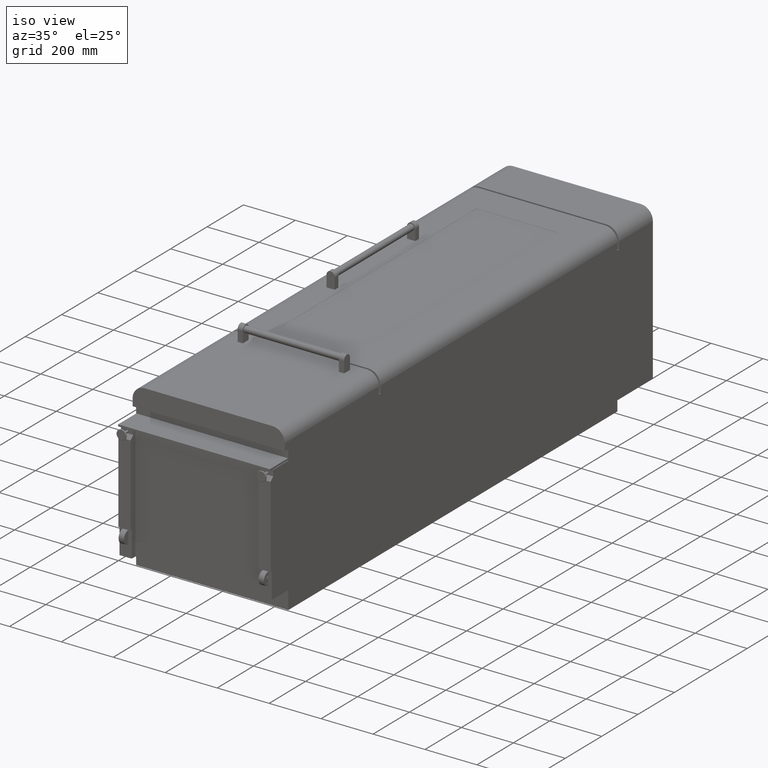
[diagram: clean part render]
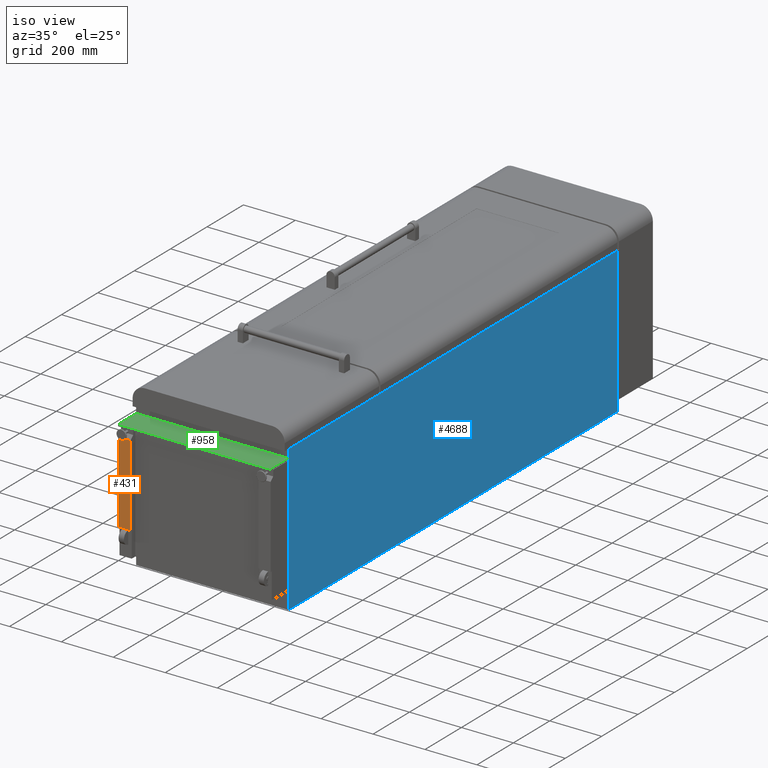
[diagram: same view with three faces highlighted in distinct colors, each labeled with its STEP entity id]
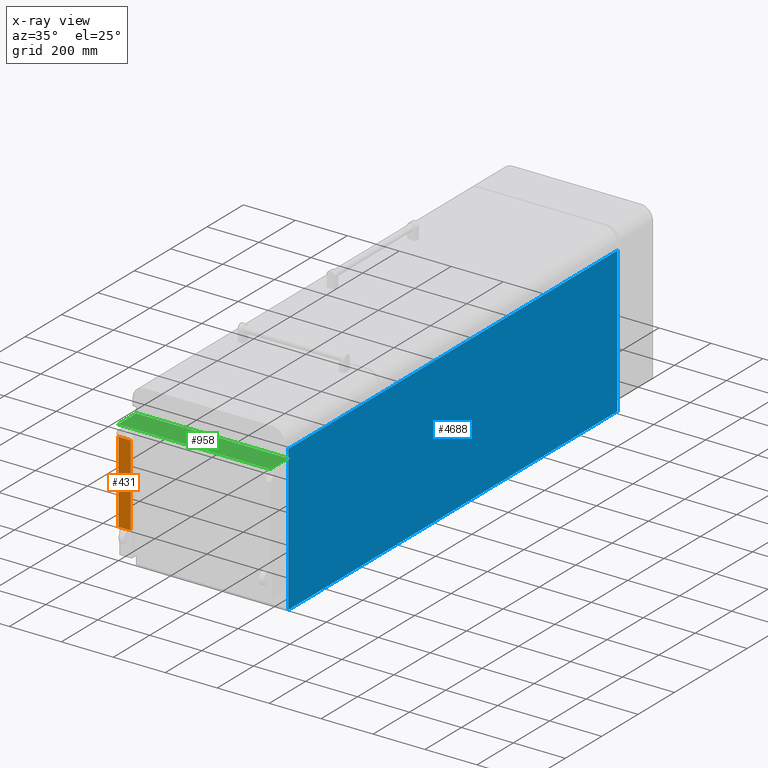
[diagram: x-ray of the same camera — body ghosted, the three highlighted faces saturated]
A machine part, iso view with three faces highlighted in distinct colors.
The next image is the same camera in x-ray (body ghosted, the three faces saturated) — at least one of them is partly hidden behind the body in this view.
Their STEP definitions:

[orange] entity #431 — the highlighted planar face has unit normal (-0, 1, 0).
#86 = VECTOR ( 'NONE', #4787, 1000.000000000000000 ) ;
#196 = LINE ( 'NONE', #1693, #1466 ) ;
#366 = CARTESIAN_POINT ( 'NONE',  ( -245.9999999999999400, -953.3499999999999100, 279.9999999999999400 ) ) ;
#431 = ADVANCED_FACE ( 'NONE', ( #1233 ), #1531, .F. ) ;
#434 = EDGE_CURVE ( 'NONE', #5209, #1123, #5119, .T. ) ;
#611 = AXIS2_PLACEMENT_3D ( 'NONE', #2372, #1569, #1791 ) ;
#698 = EDGE_CURVE ( 'NONE', #4497, #5209, #196, .T. ) ;
#762 = CARTESIAN_POINT ( 'NONE',  ( -293.0000000000000000, -953.3499999999999100, 279.9999999999999400 ) ) ;
#866 = ORIENTED_EDGE ( 'NONE', *, *, #698, .T. ) ;
#1123 = VERTEX_POINT ( 'NONE', #1126 ) ;
#1126 = CARTESIAN_POINT ( 'NONE',  ( -245.9999999999999400, -953.3499999999999100, 203.1000000000014700 ) ) ;
#1165 = DIRECTION ( 'NONE',  ( 0.0000000000000000000, 0.0000000000000000000, -1.000000000000000000 ) ) ;
#1233 = FACE_OUTER_BOUND ( 'NONE', #4541, .T. ) ;
#1362 = CARTESIAN_POINT ( 'NONE',  ( -293.0000000000000000, -953.3499999999999100, 203.1000000000014700 ) ) ;
#1466 = VECTOR ( 'NONE', #2095, 1000.000000000000000 ) ;
#1531 = PLANE ( 'NONE',  #611 ) ;
#1569 = DIRECTION ( 'NONE',  ( -0.0000000000000000000, 1.000000000000000000, 0.0000000000000000000 ) ) ;
#1693 = CARTESIAN_POINT ( 'NONE',  ( -293.0000000000000000, -953.3499999999998000, -110.3999999999987300 ) ) ;
#1778 = EDGE_CURVE ( 'NONE', #2250, #1123, #4190, .T. ) ;
#1783 = DIRECTION ( 'NONE',  ( 1.000000000000000000, -0.0000000000000000000, -0.0000000000000000000 ) ) ;
#1791 = DIRECTION ( 'NONE',  ( 0.0000000000000000000, -0.0000000000000000000, 1.000000000000000000 ) ) ;
#2095 = DIRECTION ( 'NONE',  ( 1.000000000000000000, -0.0000000000000000000, -0.0000000000000000000 ) ) ;
#2250 = VERTEX_POINT ( 'NONE', #3741 ) ;
#2258 = CARTESIAN_POINT ( 'NONE',  ( -246.0000000000000000, -953.3499999999998000, -110.3999999999987300 ) ) ;
#2355 = VECTOR ( 'NONE', #1165, 1000.000000000000000 ) ;
#2372 = CARTESIAN_POINT ( 'NONE',  ( 293.0000000000000000, -953.3499999999999100, 279.9999999999999400 ) ) ;
#2821 = ORIENTED_EDGE ( 'NONE', *, *, #434, .T. ) ;
#3101 = EDGE_CURVE ( 'NONE', #2250, #4497, #3777, .T. ) ;
#3111 = VECTOR ( 'NONE', #1783, 1000.000000000000000 ) ;
#3445 = CARTESIAN_POINT ( 'NONE',  ( -293.0000000000000000, -953.3499999999998000, -110.3999999999987300 ) ) ;
#3741 = CARTESIAN_POINT ( 'NONE',  ( -293.0000000000000000, -953.3499999999999100, 203.1000000000014700 ) ) ;
#3777 = LINE ( 'NONE', #762, #2355 ) ;
#3831 = ORIENTED_EDGE ( 'NONE', *, *, #3101, .T. ) ;
#4190 = LINE ( 'NONE', #1362, #3111 ) ;
#4311 = ORIENTED_EDGE ( 'NONE', *, *, #1778, .F. ) ;
#4497 = VERTEX_POINT ( 'NONE', #3445 ) ;
#4541 = EDGE_LOOP ( 'NONE', ( #866, #2821, #4311, #3831 ) ) ;
#4787 = DIRECTION ( 'NONE',  ( 0.0000000000000000000, 0.0000000000000000000, 1.000000000000000000 ) ) ;
#5119 = LINE ( 'NONE', #366, #86 ) ;
#5209 = VERTEX_POINT ( 'NONE', #2258 ) ;

[blue] entity #4688 — the highlighted planar face has unit normal (1, 0, 0).
#269 = EDGE_CURVE ( 'NONE', #3588, #3946, #1033, .T. ) ;
#455 = VECTOR ( 'NONE', #563, 1000.000000000000000 ) ;
#485 = CARTESIAN_POINT ( 'NONE',  ( 293.0000000000000000, 953.3500000000001400, 280.0000000000001700 ) ) ;
#543 = DIRECTION ( 'NONE',  ( -0.0000000000000000000, 1.000000000000000000, 1.164549246997594400E-016 ) ) ;
#563 = DIRECTION ( 'NONE',  ( 0.0000000000000000000, -1.000000000000000000, -1.164549246997594400E-016 ) ) ;
#789 = EDGE_LOOP ( 'NONE', ( #3000, #1433, #2495, #2862 ) ) ;
#813 = VECTOR ( 'NONE', #543, 1000.000000000000000 ) ;
#842 = VECTOR ( 'NONE', #4768, 1000.000000000000000 ) ;
#967 = LINE ( 'NONE', #4821, #842 ) ;
#1033 = LINE ( 'NONE', #1405, #455 ) ;
#1405 = CARTESIAN_POINT ( 'NONE',  ( 293.0000000000000000, 953.3500000000001400, 280.0000000000001700 ) ) ;
#1410 = FACE_OUTER_BOUND ( 'NONE', #789, .T. ) ;
#1433 = ORIENTED_EDGE ( 'NONE', *, *, #1516, .T. ) ;
#1458 = CARTESIAN_POINT ( 'NONE',  ( 293.0000000000000000, 0.0000000000000000000, 0.0000000000000000000 ) ) ;
#1498 = AXIS2_PLACEMENT_3D ( 'NONE', #1458, #2292, #4302 ) ;
#1516 = EDGE_CURVE ( 'NONE', #2290, #4270, #4835, .T. ) ;
#1921 = CARTESIAN_POINT ( 'NONE',  ( 293.0000000000000000, 953.3500000000001400, -279.9999999999998900 ) ) ;
#2290 = VERTEX_POINT ( 'NONE', #2596 ) ;
#2292 = DIRECTION ( 'NONE',  ( 1.000000000000000000, 0.0000000000000000000, 0.0000000000000000000 ) ) ;
#2495 = ORIENTED_EDGE ( 'NONE', *, *, #3675, .T. ) ;
#2596 = CARTESIAN_POINT ( 'NONE',  ( 293.0000000000000000, -856.3500000000000200, -280.0000000000000600 ) ) ;
#2676 = PLANE ( 'NONE',  #1498 ) ;
#2862 = ORIENTED_EDGE ( 'NONE', *, *, #269, .T. ) ;
#3000 = ORIENTED_EDGE ( 'NONE', *, *, #4305, .F. ) ;
#3021 = VECTOR ( 'NONE', #3236, 1000.000000000000000 ) ;
#3236 = DIRECTION ( 'NONE',  ( -0.0000000000000000000, -0.0000000000000000000, 1.000000000000000000 ) ) ;
#3588 = VERTEX_POINT ( 'NONE', #4288 ) ;
#3675 = EDGE_CURVE ( 'NONE', #4270, #3588, #4352, .T. ) ;
#3687 = CARTESIAN_POINT ( 'NONE',  ( 293.0000000000000000, -856.3500000000000200, 279.9999999999999400 ) ) ;
#3946 = VERTEX_POINT ( 'NONE', #3687 ) ;
#4270 = VERTEX_POINT ( 'NONE', #1921 ) ;
#4288 = CARTESIAN_POINT ( 'NONE',  ( 293.0000000000000000, 953.3500000000001400, 280.0000000000001700 ) ) ;
#4302 = DIRECTION ( 'NONE',  ( 0.0000000000000000000, 0.0000000000000000000, -1.000000000000000000 ) ) ;
#4305 = EDGE_CURVE ( 'NONE', #2290, #3946, #967, .T. ) ;
#4352 = LINE ( 'NONE', #485, #3021 ) ;
#4688 = ADVANCED_FACE ( 'NONE', ( #1410 ), #2676, .T. ) ;
#4768 = DIRECTION ( 'NONE',  ( -0.0000000000000000000, -0.0000000000000000000, 1.000000000000000000 ) ) ;
#4821 = CARTESIAN_POINT ( 'NONE',  ( 293.0000000000000000, -856.3500000000000200, 279.9999999999999400 ) ) ;
#4835 = LINE ( 'NONE', #4994, #813 ) ;
#4994 = CARTESIAN_POINT ( 'NONE',  ( 293.0000000000000000, 953.3500000000001400, -279.9999999999998900 ) ) ;

[green] entity #958 — the highlighted planar face has unit normal (0, 0, 1).
#35 = EDGE_CURVE ( 'NONE', #4626, #1415, #2968, .T. ) ;
#118 = FACE_OUTER_BOUND ( 'NONE', #3617, .T. ) ;
#166 = LINE ( 'NONE', #4072, #4707 ) ;
#658 = CARTESIAN_POINT ( 'NONE',  ( 292.0000000000000000, -956.3500000000002500, 248.0000000000002000 ) ) ;
#705 = EDGE_CURVE ( 'NONE', #1264, #4626, #3434, .T. ) ;
#769 = PLANE ( 'NONE',  #1135 ) ;
#887 = EDGE_CURVE ( 'NONE', #1415, #1991, #3301, .T. ) ;
#958 = ADVANCED_FACE ( 'NONE', ( #118 ), #769, .T. ) ;
#1135 = AXIS2_PLACEMENT_3D ( 'NONE', #1221, #4027, #1581 ) ;
#1221 = CARTESIAN_POINT ( 'NONE',  ( 0.0000000000000000000, 0.0000000000000000000, 248.0000000000002000 ) ) ;
#1264 = VERTEX_POINT ( 'NONE', #1431 ) ;
#1354 = DIRECTION ( 'NONE',  ( 0.0000000000000000000, -1.000000000000000000, 0.0000000000000000000 ) ) ;
#1415 = VERTEX_POINT ( 'NONE', #658 ) ;
#1431 = CARTESIAN_POINT ( 'NONE',  ( -291.9999999999998900, -856.3500000000002500, 248.0000000000002000 ) ) ;
#1518 = ORIENTED_EDGE ( 'NONE', *, *, #35, .T. ) ;
#1581 = DIRECTION ( 'NONE',  ( 1.000000000000000000, 0.0000000000000000000, -0.0000000000000000000 ) ) ;
#1688 = CARTESIAN_POINT ( 'NONE',  ( -291.9999999999998900, -956.3500000000001400, 248.0000000000002000 ) ) ;
#1854 = ORIENTED_EDGE ( 'NONE', *, *, #887, .T. ) ;
#1967 = EDGE_CURVE ( 'NONE', #1991, #1264, #166, .T. ) ;
#1991 = VERTEX_POINT ( 'NONE', #3237 ) ;
#2083 = ORIENTED_EDGE ( 'NONE', *, *, #705, .T. ) ;
#2090 = DIRECTION ( 'NONE',  ( 1.000000000000000000, -1.901066822988282200E-016, 0.0000000000000000000 ) ) ;
#2270 = VECTOR ( 'NONE', #1354, 1000.000000000000000 ) ;
#2968 = LINE ( 'NONE', #1688, #4686 ) ;
#3237 = CARTESIAN_POINT ( 'NONE',  ( 291.9999999999998900, -856.3500000000002500, 248.0000000000002000 ) ) ;
#3288 = DIRECTION ( 'NONE',  ( -1.000000000000000000, -0.0000000000000000000, -0.0000000000000000000 ) ) ;
#3301 = LINE ( 'NONE', #4433, #4665 ) ;
#3332 = CARTESIAN_POINT ( 'NONE',  ( -291.9999999999998900, -956.3500000000001400, 248.0000000000002000 ) ) ;
#3434 = LINE ( 'NONE', #3695, #2270 ) ;
#3617 = EDGE_LOOP ( 'NONE', ( #1854, #4000, #2083, #1518 ) ) ;
#3682 = DIRECTION ( 'NONE',  ( -1.110223024625156700E-015, 1.000000000000000000, -0.0000000000000000000 ) ) ;
#3695 = CARTESIAN_POINT ( 'NONE',  ( -291.9999999999998900, -856.3500000000002500, 248.0000000000002000 ) ) ;
#4000 = ORIENTED_EDGE ( 'NONE', *, *, #1967, .T. ) ;
#4027 = DIRECTION ( 'NONE',  ( 0.0000000000000000000, 0.0000000000000000000, 1.000000000000000000 ) ) ;
#4072 = CARTESIAN_POINT ( 'NONE',  ( -291.9999999999998900, -856.3500000000002500, 248.0000000000002000 ) ) ;
#4433 = CARTESIAN_POINT ( 'NONE',  ( 291.9999999999998900, -856.3500000000002500, 248.0000000000002000 ) ) ;
#4626 = VERTEX_POINT ( 'NONE', #3332 ) ;
#4665 = VECTOR ( 'NONE', #3682, 1000.000000000000000 ) ;
#4686 = VECTOR ( 'NONE', #2090, 1000.000000000000000 ) ;
#4707 = VECTOR ( 'NONE', #3288, 1000.000000000000000 ) ;